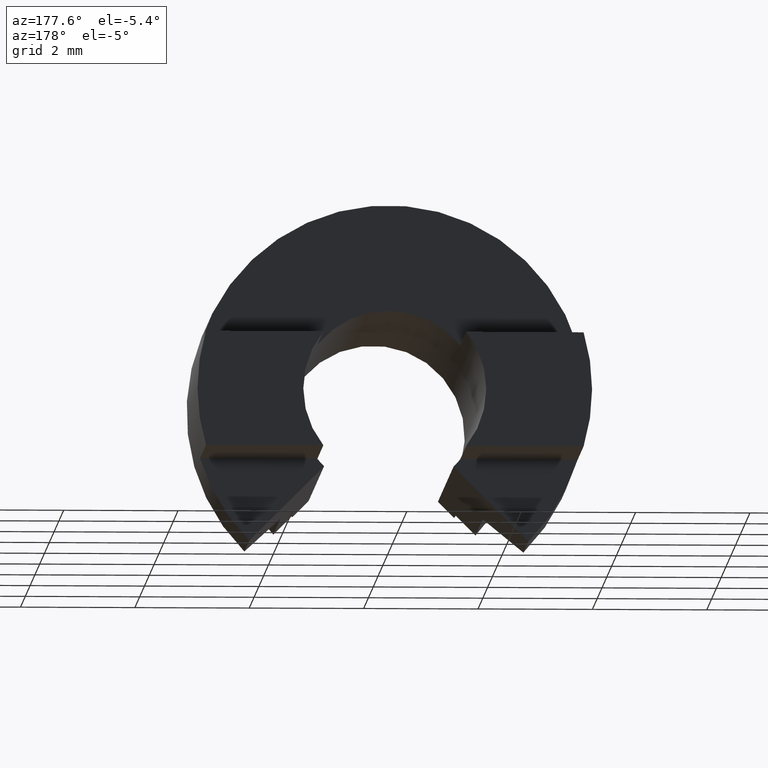
[diagram: clean part render]
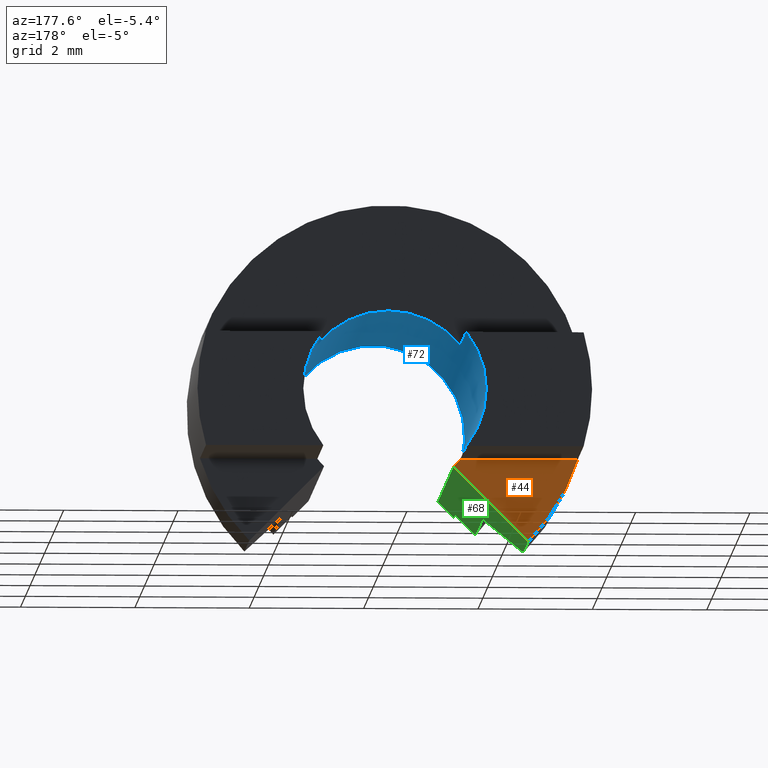
[diagram: same view with three faces highlighted in distinct colors, each labeled with its STEP entity id]
A machine part, auxiliary view with three faces highlighted in distinct colors.
Their STEP definitions:

[orange] entity #44 — the highlighted planar face has unit normal (0, 1, 0).
#44 = ADVANCED_FACE( '', ( #98 ), #99, .T. );
#98 = FACE_OUTER_BOUND( '', #159, .T. );
#99 = PLANE( '', #160 );
#159 = EDGE_LOOP( '', ( #219, #220, #221, #222 ) );
#160 = AXIS2_PLACEMENT_3D( '', #223, #224, #225 );
#219 = ORIENTED_EDGE( '', *, *, #384, .T. );
#220 = ORIENTED_EDGE( '', *, *, #385, .F. );
#221 = ORIENTED_EDGE( '', *, *, #386, .T. );
#222 = ORIENTED_EDGE( '', *, *, #387, .T. );
#223 = CARTESIAN_POINT( '', ( 0.000000000000000, 6.49999999999998, 0.000000000000000 ) );
#224 = DIRECTION( '', ( 0.000000000000000, 1.00000000000000, 0.000000000000000 ) );
#225 = DIRECTION( '', ( 0.000000000000000, -0.000000000000000, 1.00000000000000 ) );
#384 = EDGE_CURVE( '', #454, #455, #456, .F. );
#385 = EDGE_CURVE( '', #457, #455, #458, .T. );
#386 = EDGE_CURVE( '', #457, #459, #460, .T. );
#387 = EDGE_CURVE( '', #459, #454, #461, .T. );
#454 = VERTEX_POINT( '', #556 );
#455 = VERTEX_POINT( '', #557 );
#456 = CIRCLE( '', #558, 1.60000000000000 );
#457 = VERTEX_POINT( '', #559 );
#458 = LINE( '', #560, #561 );
#459 = VERTEX_POINT( '', #562 );
#460 = CIRCLE( '', #563, 3.45000000000000 );
#461 = LINE( '', #564, #565 );
#556 = CARTESIAN_POINT( '', ( -1.24899959967968, 6.49999999999998, -1.00000000000000 ) );
#557 = CARTESIAN_POINT( '', ( -1.13137084989848, 6.49999999999998, -1.13137084989848 ) );
#558 = AXIS2_PLACEMENT_3D( '', #676, #677, #678 );
#559 = CARTESIAN_POINT( '', ( -2.43951839509358, 6.49999999999998, -2.43951839509360 ) );
#560 = CARTESIAN_POINT( '', ( -2.43951839509359, 6.49999999999998, -2.43951839509360 ) );
#561 = VECTOR( '', #679, 1000.00000000000 );
#562 = CARTESIAN_POINT( '', ( -3.30189339621981, 6.49999999999998, -1.00000000000000 ) );
#563 = AXIS2_PLACEMENT_3D( '', #680, #681, #682 );
#564 = CARTESIAN_POINT( '', ( -3.30189339621981, 6.49999999999998, -1.00000000000000 ) );
#565 = VECTOR( '', #683, 1000.00000000000 );
#676 = CARTESIAN_POINT( '', ( 0.000000000000000, 6.49999999999998, 0.000000000000000 ) );
#677 = DIRECTION( '', ( 0.000000000000000, 1.00000000000000, 0.000000000000000 ) );
#678 = DIRECTION( '', ( 0.000000000000000, -0.000000000000000, 1.00000000000000 ) );
#679 = DIRECTION( '', ( 0.707106781186544, -0.000000000000000, 0.707106781186551 ) );
#680 = CARTESIAN_POINT( '', ( 0.000000000000000, 6.49999999999998, 0.000000000000000 ) );
#681 = DIRECTION( '', ( 0.000000000000000, 1.00000000000000, 0.000000000000000 ) );
#682 = DIRECTION( '', ( -0.707106781186545, 0.000000000000000, -0.707106781186549 ) );
#683 = DIRECTION( '', ( 1.00000000000000, 0.000000000000000, 0.000000000000000 ) );

[blue] entity #72 — the highlighted cylindrical surface (partial cylindrical patch) has radius 1.6 mm, axis along (-0, -1, -0).
#72 = ADVANCED_FACE( '', ( #140 ), #141, .F. );
#140 = FACE_OUTER_BOUND( '', #201, .T. );
#141 = CYLINDRICAL_SURFACE( '', #202, 1.60000000000000 );
#201 = EDGE_LOOP( '', ( #347, #348, #349, #350, #351, #352, #353, #354, #355, #356, #357, #358 ) );
#202 = AXIS2_PLACEMENT_3D( '', #359, #360, #361 );
#347 = ORIENTED_EDGE( '', *, *, #390, .F. );
#348 = ORIENTED_EDGE( '', *, *, #420, .F. );
#349 = ORIENTED_EDGE( '', *, *, #433, .F. );
#350 = ORIENTED_EDGE( '', *, *, #430, .F. );
#351 = ORIENTED_EDGE( '', *, *, #412, .F. );
#352 = ORIENTED_EDGE( '', *, *, #441, .F. );
#353 = ORIENTED_EDGE( '', *, *, #435, .F. );
#354 = ORIENTED_EDGE( '', *, *, #384, .F. );
#355 = ORIENTED_EDGE( '', *, *, #410, .F. );
#356 = ORIENTED_EDGE( '', *, *, #422, .F. );
#357 = ORIENTED_EDGE( '', *, *, #382, .F. );
#358 = ORIENTED_EDGE( '', *, *, #439, .F. );
#359 = CARTESIAN_POINT( '', ( 0.000000000000000, -1.60000000001457, 0.000000000000000 ) );
#360 = DIRECTION( '', ( -0.000000000000000, -1.00000000000000, -0.000000000000000 ) );
#361 = DIRECTION( '', ( -1.00000000000000, 0.000000000000000, -6.12303176911189E-017 ) );
#382 = EDGE_CURVE( '', #450, #445, #452, .T. );
#384 = EDGE_CURVE( '', #454, #455, #456, .F. );
#390 = EDGE_CURVE( '', #464, #466, #467, .F. );
#410 = EDGE_CURVE( '', #497, #454, #499, .F. );
#412 = EDGE_CURVE( '', #501, #502, #503, .T. );
#420 = EDGE_CURVE( '', #512, #464, #514, .T. );
#422 = EDGE_CURVE( '', #445, #497, #516, .T. );
#430 = EDGE_CURVE( '', #502, #526, #527, .F. );
#433 = EDGE_CURVE( '', #526, #512, #530, .T. );
#435 = EDGE_CURVE( '', #455, #532, #533, .F. );
#439 = EDGE_CURVE( '', #466, #450, #537, .F. );
#441 = EDGE_CURVE( '', #532, #501, #539, .T. );
#445 = VERTEX_POINT( '', #543 );
#450 = VERTEX_POINT( '', #550 );
#452 = LINE( '', #553, #554 );
#454 = VERTEX_POINT( '', #556 );
#455 = VERTEX_POINT( '', #557 );
#456 = CIRCLE( '', #558, 1.60000000000000 );
#464 = VERTEX_POINT( '', #568 );
#466 = VERTEX_POINT( '', #571 );
#467 = LINE( '', #572, #573 );
#497 = VERTEX_POINT( '', #611 );
#499 = LINE( '', #614, #615 );
#501 = VERTEX_POINT( '', #617 );
#502 = VERTEX_POINT( '', #618 );
#503 = LINE( '', #619, #620 );
#512 = VERTEX_POINT( '', #634 );
#514 = CIRCLE( '', #637, 1.60000000000000 );
#516 = CIRCLE( '', #639, 1.60000000000000 );
#526 = VERTEX_POINT( '', #651 );
#527 = CIRCLE( '', #652, 1.60000000000000 );
#530 = LINE( '', #656, #657 );
#532 = VERTEX_POINT( '', #659 );
#533 = LINE( '', #660, #661 );
#537 = CIRCLE( '', #667, 1.60000000000000 );
#539 = CIRCLE( '', #669, 1.60000000000000 );
#543 = CARTESIAN_POINT( '', ( -1.24899959967968, 8.99999999999998, 1.00000000000000 ) );
#550 = CARTESIAN_POINT( '', ( -1.24899959967968, 6.49999999999998, 1.00000000000000 ) );
#553 = CARTESIAN_POINT( '', ( -1.24899959967968, -1.60000000001457, 1.00000000000000 ) );
#554 = VECTOR( '', #675, 1000.00000000000 );
#556 = CARTESIAN_POINT( '', ( -1.24899959967968, 6.49999999999998, -1.00000000000000 ) );
#557 = CARTESIAN_POINT( '', ( -1.13137084989848, 6.49999999999998, -1.13137084989848 ) );
#558 = AXIS2_PLACEMENT_3D( '', #676, #677, #678 );
#568 = CARTESIAN_POINT( '', ( 1.24899959967968, 8.99999999999998, 1.00000000000000 ) );
#571 = CARTESIAN_POINT( '', ( 1.24899959967968, 6.49999999999998, 1.00000000000000 ) );
#572 = CARTESIAN_POINT( '', ( 1.24899959967968, -1.60000000001457, 1.00000000000000 ) );
#573 = VECTOR( '', #685, 1000.00000000000 );
#611 = CARTESIAN_POINT( '', ( -1.24899959967968, 8.99999999999998, -1.00000000000000 ) );
#614 = CARTESIAN_POINT( '', ( -1.24899959967968, -1.60000000001457, -1.00000000000000 ) );
#615 = VECTOR( '', #716, 1000.00000000000 );
#617 = CARTESIAN_POINT( '', ( 1.13137084989798, 0.000000000000000, -1.13137084989898 ) );
#618 = CARTESIAN_POINT( '', ( 1.13137084989798, 6.49999999999998, -1.13137084989898 ) );
#619 = CARTESIAN_POINT( '', ( 1.13137084989798, -1.60000000001457, -1.13137084989898 ) );
#620 = VECTOR( '', #717, 1000.00000000000 );
#634 = CARTESIAN_POINT( '', ( 1.24899959967968, 8.99999999999998, -1.00000000000000 ) );
#637 = AXIS2_PLACEMENT_3D( '', #724, #725, #726 );
#639 = AXIS2_PLACEMENT_3D( '', #727, #728, #729 );
#651 = CARTESIAN_POINT( '', ( 1.24899959967968, 6.49999999999998, -1.00000000000000 ) );
#652 = AXIS2_PLACEMENT_3D( '', #738, #739, #740 );
#656 = CARTESIAN_POINT( '', ( 1.24899959967968, -1.60000000001457, -1.00000000000000 ) );
#657 = VECTOR( '', #742, 1000.00000000000 );
#659 = CARTESIAN_POINT( '', ( -1.13137084989848, 0.000000000000000, -1.13137084989848 ) );
#660 = CARTESIAN_POINT( '', ( -1.13137084989848, -1.60000000001457, -1.13137084989848 ) );
#661 = VECTOR( '', #743, 1000.00000000000 );
#667 = AXIS2_PLACEMENT_3D( '', #746, #747, #748 );
#669 = AXIS2_PLACEMENT_3D( '', #749, #750, #751 );
#675 = DIRECTION( '', ( 0.000000000000000, 1.00000000000000, 0.000000000000000 ) );
#676 = CARTESIAN_POINT( '', ( 0.000000000000000, 6.49999999999998, 0.000000000000000 ) );
#677 = DIRECTION( '', ( 0.000000000000000, 1.00000000000000, 0.000000000000000 ) );
#678 = DIRECTION( '', ( 0.000000000000000, -0.000000000000000, 1.00000000000000 ) );
#685 = DIRECTION( '', ( 0.000000000000000, 1.00000000000000, 0.000000000000000 ) );
#716 = DIRECTION( '', ( 0.000000000000000, 1.00000000000000, 0.000000000000000 ) );
#717 = DIRECTION( '', ( 0.000000000000000, 1.00000000000000, 0.000000000000000 ) );
#724 = CARTESIAN_POINT( '', ( 0.000000000000000, 8.99999999999998, 0.000000000000000 ) );
#725 = DIRECTION( '', ( 0.000000000000000, -1.00000000000000, -0.000000000000000 ) );
#726 = DIRECTION( '', ( -1.00000000000000, 0.000000000000000, -6.12303176911189E-017 ) );
#727 = CARTESIAN_POINT( '', ( 0.000000000000000, 8.99999999999998, 0.000000000000000 ) );
#728 = DIRECTION( '', ( 0.000000000000000, -1.00000000000000, -0.000000000000000 ) );
#729 = DIRECTION( '', ( -1.00000000000000, 0.000000000000000, -6.12303176911189E-017 ) );
#738 = CARTESIAN_POINT( '', ( 0.000000000000000, 6.49999999999998, 0.000000000000000 ) );
#739 = DIRECTION( '', ( 0.000000000000000, 1.00000000000000, 0.000000000000000 ) );
#740 = DIRECTION( '', ( 0.000000000000000, -0.000000000000000, 1.00000000000000 ) );
#742 = DIRECTION( '', ( 0.000000000000000, 1.00000000000000, 0.000000000000000 ) );
#743 = DIRECTION( '', ( 0.000000000000000, 1.00000000000000, 0.000000000000000 ) );
#746 = CARTESIAN_POINT( '', ( 0.000000000000000, 6.49999999999998, 0.000000000000000 ) );
#747 = DIRECTION( '', ( 0.000000000000000, 1.00000000000000, 0.000000000000000 ) );
#748 = DIRECTION( '', ( 0.000000000000000, -0.000000000000000, 1.00000000000000 ) );
#749 = CARTESIAN_POINT( '', ( 0.000000000000000, 0.000000000000000, 0.000000000000000 ) );
#750 = DIRECTION( '', ( 0.000000000000000, 1.00000000000000, 0.000000000000000 ) );
#751 = DIRECTION( '', ( 0.000000000000000, -0.000000000000000, 1.00000000000000 ) );

[green] entity #68 — the highlighted planar face has unit normal (0.7071, 0, -0.7071).
#68 = ADVANCED_FACE( '', ( #134 ), #135, .T. );
#134 = FACE_OUTER_BOUND( '', #195, .T. );
#135 = PLANE( '', #196 );
#195 = EDGE_LOOP( '', ( #327, #328, #329, #330, #331, #332, #333, #334 ) );
#196 = AXIS2_PLACEMENT_3D( '', #335, #336, #337 );
#327 = ORIENTED_EDGE( '', *, *, #401, .F. );
#328 = ORIENTED_EDGE( '', *, *, #385, .T. );
#329 = ORIENTED_EDGE( '', *, *, #435, .T. );
#330 = ORIENTED_EDGE( '', *, *, #436, .T. );
#331 = ORIENTED_EDGE( '', *, *, #426, .T. );
#332 = ORIENTED_EDGE( '', *, *, #437, .T. );
#333 = ORIENTED_EDGE( '', *, *, #394, .T. );
#334 = ORIENTED_EDGE( '', *, *, #424, .T. );
#335 = CARTESIAN_POINT( '', ( -2.43951839509359, 35.5495762678051, -2.43951839509360 ) );
#336 = DIRECTION( '', ( 0.707106781186551, 0.000000000000000, -0.707106781186544 ) );
#337 = DIRECTION( '', ( -0.707106781186544, 0.000000000000000, -0.707106781186551 ) );
#385 = EDGE_CURVE( '', #457, #455, #458, .T. );
#394 = EDGE_CURVE( '', #472, #473, #474, .F. );
#401 = EDGE_CURVE( '', #457, #484, #485, .T. );
#424 = EDGE_CURVE( '', #473, #484, #518, .T. );
#426 = EDGE_CURVE( '', #520, #521, #522, .F. );
#435 = EDGE_CURVE( '', #455, #532, #533, .F. );
#436 = EDGE_CURVE( '', #532, #520, #534, .T. );
#437 = EDGE_CURVE( '', #521, #472, #535, .T. );
#455 = VERTEX_POINT( '', #557 );
#457 = VERTEX_POINT( '', #559 );
#458 = LINE( '', #560, #561 );
#472 = VERTEX_POINT( '', #580 );
#473 = VERTEX_POINT( '', #581 );
#474 = LINE( '', #582, #583 );
#484 = VERTEX_POINT( '', #595 );
#485 = LINE( '', #596, #597 );
#518 = LINE( '', #641, #642 );
#520 = VERTEX_POINT( '', #644 );
#521 = VERTEX_POINT( '', #645 );
#522 = LINE( '', #646, #647 );
#532 = VERTEX_POINT( '', #659 );
#533 = LINE( '', #660, #661 );
#534 = LINE( '', #662, #663 );
#535 = LINE( '', #664, #665 );
#557 = CARTESIAN_POINT( '', ( -1.13137084989848, 6.49999999999998, -1.13137084989848 ) );
#559 = CARTESIAN_POINT( '', ( -2.43951839509358, 6.49999999999998, -2.43951839509360 ) );
#560 = CARTESIAN_POINT( '', ( -2.43951839509359, 6.49999999999998, -2.43951839509360 ) );
#561 = VECTOR( '', #679, 1000.00000000000 );
#580 = CARTESIAN_POINT( '', ( -1.76776695296637, 0.500000000000000, -1.76776695296637 ) );
#581 = CARTESIAN_POINT( '', ( -1.76776695296637, 3.50000000000000, -1.76776695296637 ) );
#582 = CARTESIAN_POINT( '', ( -1.76776695296637, 0.000000000000000, -1.76776695296637 ) );
#583 = VECTOR( '', #688, 1000.00000000000 );
#595 = CARTESIAN_POINT( '', ( -2.43951839509359, 4.44999999999999, -2.43951839509360 ) );
#596 = CARTESIAN_POINT( '', ( -2.43951839509359, 35.5495762678051, -2.43951839509360 ) );
#597 = VECTOR( '', #700, 1000.00000000000 );
#641 = CARTESIAN_POINT( '', ( -6.13317366673353E-015, 1.00000000000007, 6.13317366673346E-015 ) );
#642 = VECTOR( '', #730, 1000.00000000000 );
#644 = CARTESIAN_POINT( '', ( -1.41421356237309, 0.000000000000000, -1.41421356237310 ) );
#645 = CARTESIAN_POINT( '', ( -1.41421356237309, 0.500000000000000, -1.41421356237310 ) );
#646 = CARTESIAN_POINT( '', ( -1.41421356237309, 0.000000000000000, -1.41421356237310 ) );
#647 = VECTOR( '', #731, 1000.00000000000 );
#659 = CARTESIAN_POINT( '', ( -1.13137084989848, 0.000000000000000, -1.13137084989848 ) );
#660 = CARTESIAN_POINT( '', ( -1.13137084989848, -1.60000000001457, -1.13137084989848 ) );
#661 = VECTOR( '', #743, 1000.00000000000 );
#662 = CARTESIAN_POINT( '', ( -0.999999999999996, 0.000000000000000, -0.999999999999995 ) );
#663 = VECTOR( '', #744, 1000.00000000000 );
#664 = CARTESIAN_POINT( '', ( -1.24999999999999, 0.500000000000000, -1.25000000000000 ) );
#665 = VECTOR( '', #745, 1000.00000000000 );
#679 = DIRECTION( '', ( 0.707106781186544, -0.000000000000000, 0.707106781186551 ) );
#688 = DIRECTION( '', ( -0.000000000000000, -1.00000000000000, -0.000000000000000 ) );
#700 = DIRECTION( '', ( 0.000000000000000, -1.00000000000000, -0.000000000000000 ) );
#730 = DIRECTION( '', ( -0.500000000000005, 0.707106781186537, -0.500000000000010 ) );
#731 = DIRECTION( '', ( -0.000000000000000, -1.00000000000000, -0.000000000000000 ) );
#743 = DIRECTION( '', ( 0.000000000000000, 1.00000000000000, 0.000000000000000 ) );
#744 = DIRECTION( '', ( -0.707106781186544, 0.000000000000000, -0.707106781186551 ) );
#745 = DIRECTION( '', ( -0.707106781186544, 0.000000000000000, -0.707106781186551 ) );